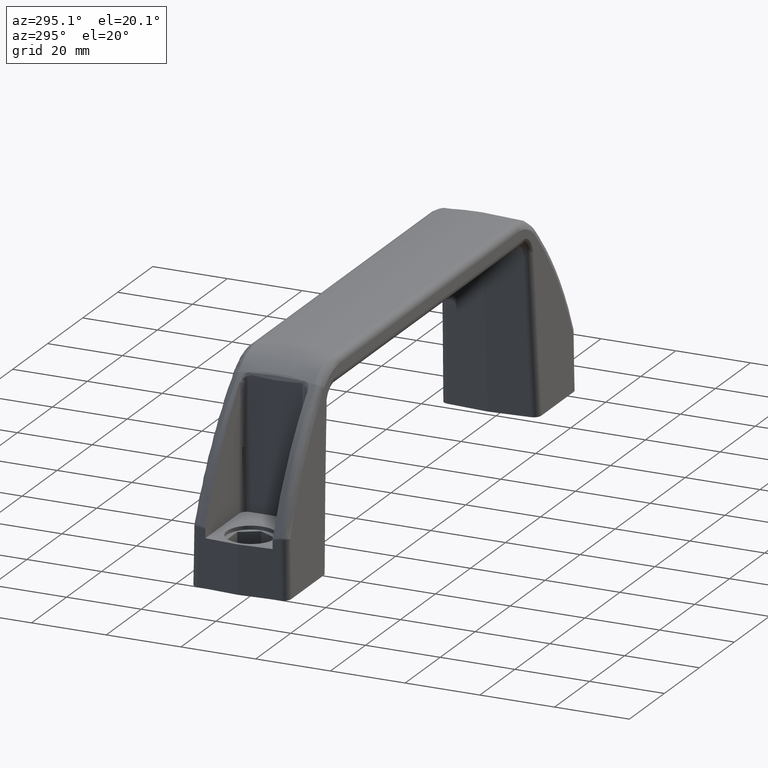
[diagram: clean part render]
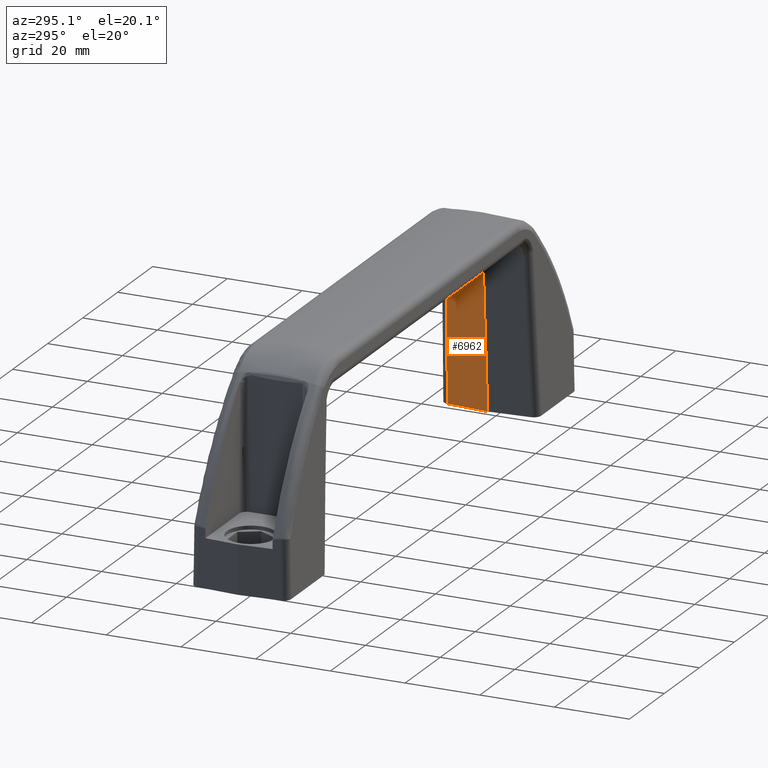
[diagram: same view with one face highlighted and labeled with its STEP entity id]
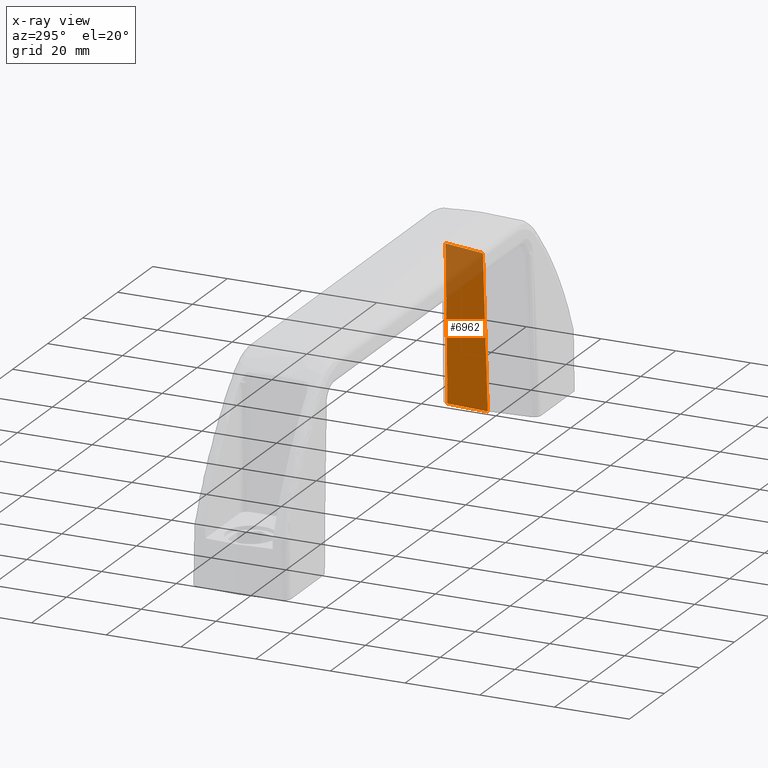
[diagram: x-ray of the same camera — body ghosted, the highlighted face saturated]
A machine part, auxiliary view. The second image highlights one B-rep face of the part: STEP entity #6962.
The next image is the same camera in x-ray: the body ghosted, the highlighted face saturated — about 23% of this face is hidden behind the body in this view.
In plain terms, the highlighted face is a freeform B-spline surface patch.
Its self-contained STEP definition (entity closure, byte-faithful):
#4557=CARTESIAN_POINT('',(133.250073063392390,10.357281868349700,42.442060617702403));
#4558=VERTEX_POINT('',#4557);
#4662=CARTESIAN_POINT('',(136.109606995972600,11.150591412605980,9.947598E-014));
#4663=VERTEX_POINT('',#4662);
#4679=CARTESIAN_POINT('',(133.250073063392390,10.357281868349700,42.442060617702403));
#4680=CARTESIAN_POINT('',(136.109606995972600,11.150591412605980,9.947598E-014));
#4681=QUASI_UNIFORM_CURVE('',1,(#4679,#4680),.UNSPECIFIED.,.F.,.U.);
#4682=EDGE_CURVE('',#4558,#4663,#4681,.T.);
#5363=CARTESIAN_POINT('',(132.496405535352210,-1.549694E-011,41.762952466919302));
#5364=VERTEX_POINT('',#5363);
#5365=CARTESIAN_POINT('',(132.496405535352210,-1.549694E-011,41.762952466919302));
#5366=CARTESIAN_POINT('',(132.895995705752340,5.199659711909849,41.781942863573008));
#5367=CARTESIAN_POINT('',(133.250073063392310,10.357281868349681,42.442060617702339));
#5375=(BOUNDED_CURVE()B_SPLINE_CURVE(2,(#5365,#5366,#5367),.UNSPECIFIED.,.F.,.U.)CURVE()GEOMETRIC_REPRESENTATION_ITEM()QUASI_UNIFORM_CURVE()RATIONAL_B_SPLINE_CURVE((1.0,0.998089613955469,1.0))REPRESENTATION_ITEM(''));
#5376=EDGE_CURVE('',#5364,#4558,#5375,.T.);
#6701=CARTESIAN_POINT('',(135.250006794628800,-0.000000377011133,9.535706E-010));
#6702=VERTEX_POINT('',#6701);
#6708=CARTESIAN_POINT('',(135.250006794628800,-0.000000377011133,9.535706E-010));
#6709=CARTESIAN_POINT('',(136.109606995972600,11.150591412605980,9.947598E-014));
#6710=QUASI_UNIFORM_CURVE('',1,(#6708,#6709),.UNSPECIFIED.,.F.,.U.);
#6711=EDGE_CURVE('',#6702,#4663,#6710,.T.);
#6943=CARTESIAN_POINT('',(132.496405535352210,-1.549694E-011,41.762952466919302));
#6944=CARTESIAN_POINT('',(135.250006794628800,-0.000000377011133,9.535706E-010));
#6945=QUASI_UNIFORM_CURVE('',1,(#6943,#6944),.UNSPECIFIED.,.F.,.U.);
#6946=EDGE_CURVE('',#5364,#6702,#6945,.T.);
#6951=CARTESIAN_POINT('',(133.232557893722200,11.943268823497750,44.562043057005589));
#6952=CARTESIAN_POINT('',(132.269190801775890,-0.553369505169751,44.562043057005589));
#6953=CARTESIAN_POINT('',(136.292309863988810,11.707392239719960,-2.119982060784729));
#6954=CARTESIAN_POINT('',(135.328942772042610,-0.789246088947535,-2.119982060784729));
#6955=B_SPLINE_SURFACE_WITH_KNOTS('',1,1,((#6951,#6953),(#6952,#6954)),.UNSPECIFIED.,.F.,.F.,.U.,(2,2),(2,2),(0.0,12.533716355150480),(0.0,46.782787315211692),.UNSPECIFIED.);
#6956=ORIENTED_EDGE('',*,*,#5376,.T.);
#6957=ORIENTED_EDGE('',*,*,#4682,.T.);
#6958=ORIENTED_EDGE('',*,*,#6711,.F.);
#6959=ORIENTED_EDGE('',*,*,#6946,.F.);
#6960=EDGE_LOOP('',(#6956,#6957,#6958,#6959));
#6961=FACE_OUTER_BOUND('',#6960,.T.);
#6962=ADVANCED_FACE('',(#6961),#6955,.F.);